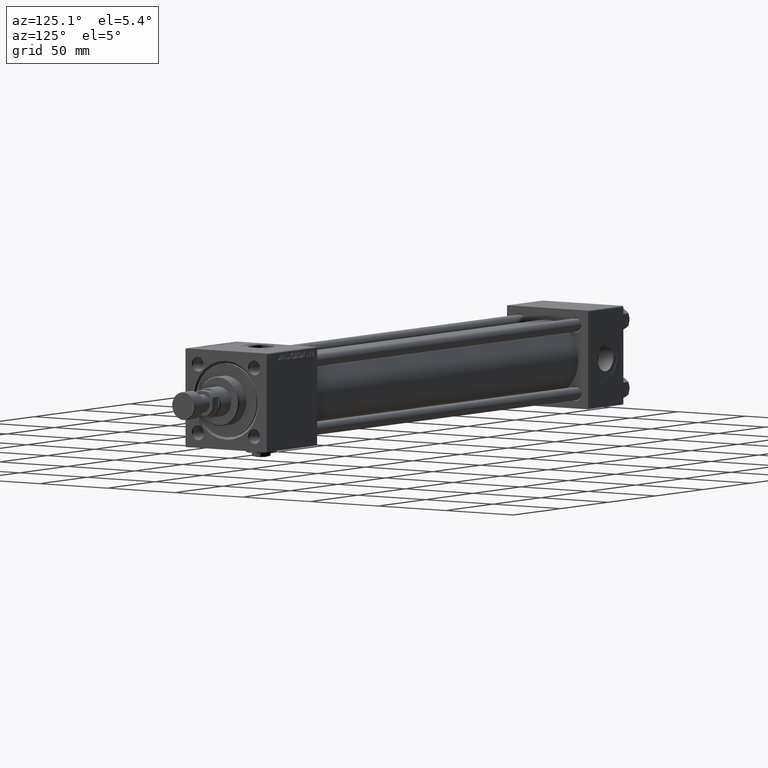
[diagram: clean part render]
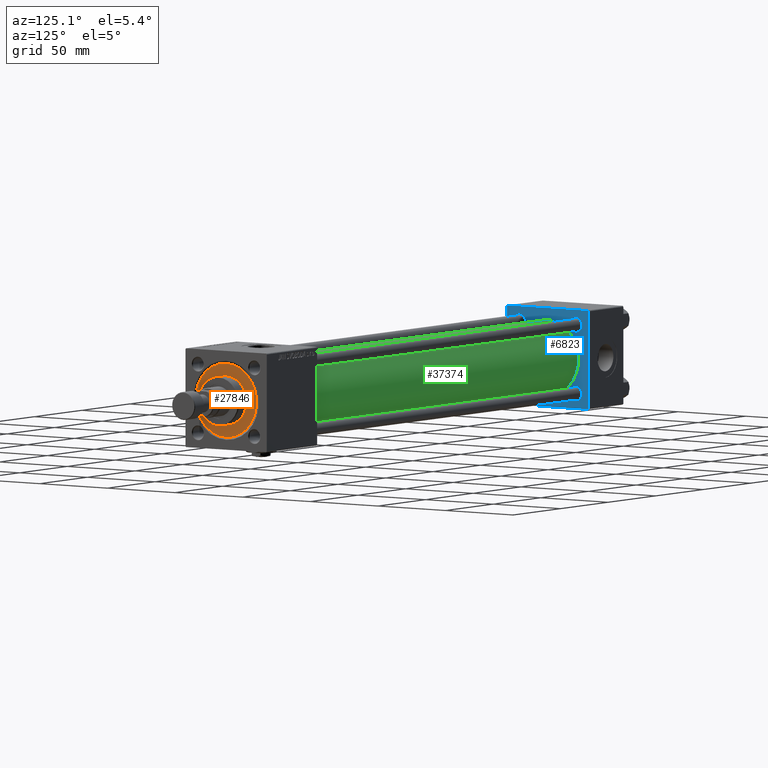
[diagram: same view with three faces highlighted in distinct colors, each labeled with its STEP entity id]
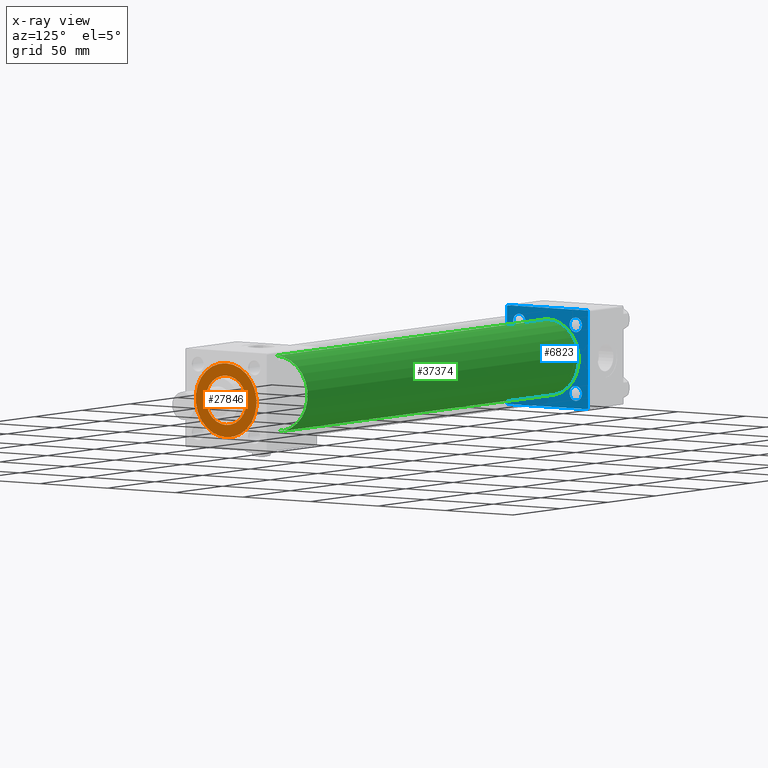
[diagram: x-ray of the same camera — body ghosted, the three highlighted faces saturated]
A machine part, auxiliary view with three faces highlighted in distinct colors.
The next image is the same camera in x-ray (body ghosted, the three faces saturated) — at least one of them is partly hidden behind the body in this view.
Their STEP definitions:

[orange] entity #27846 — the highlighted planar face has unit normal (1, 0, 0).
#1809 = DIRECTION ( 'NONE',  ( 0.000000000000000000, 0.000000000000000000, 1.000000000000000000 ) ) ;
#1943 = VERTEX_POINT ( 'NONE', #26439 ) ;
#3151 = AXIS2_PLACEMENT_3D ( 'NONE', #17734, #21982, #42475 ) ;
#3486 = ORIENTED_EDGE ( 'NONE', *, *, #45606, .F. ) ;
#3556 = CARTESIAN_POINT ( 'NONE',  ( 0.000000000000000000, 0.000000000000000000, 28.69999999999999929 ) ) ;
#5185 = DIRECTION ( 'NONE',  ( 0.000000000000000000, 0.000000000000000000, 1.000000000000000000 ) ) ;
#5450 = DIRECTION ( 'NONE',  ( 1.000000000000000000, 0.000000000000000000, 0.000000000000000000 ) ) ;
#5568 = CIRCLE ( 'NONE', #39565, 22.50000000000000355 ) ;
#6811 = CARTESIAN_POINT ( 'NONE',  ( 22.50000000000000355, 2.755455298081545172E-15, 28.69999999999999929 ) ) ;
#8250 = CIRCLE ( 'NONE', #3151, 15.00000000000000000 ) ;
#12962 = AXIS2_PLACEMENT_3D ( 'NONE', #22027, #1809, #34285 ) ;
#13218 = AXIS2_PLACEMENT_3D ( 'NONE', #18468, #5185, #46426 ) ;
#16214 = ORIENTED_EDGE ( 'NONE', *, *, #37567, .T. ) ;
#16682 = EDGE_LOOP ( 'NONE', ( #30157, #3486 ) ) ;
#17734 = CARTESIAN_POINT ( 'NONE',  ( 0.000000000000000000, 0.000000000000000000, 28.69999999999999929 ) ) ;
#18468 = CARTESIAN_POINT ( 'NONE',  ( 0.000000000000000000, 0.000000000000000000, 28.69999999999999929 ) ) ;
#20922 = CARTESIAN_POINT ( 'NONE',  ( 15.00000000000000000, 1.836970198721029589E-15, 28.69999999999999929 ) ) ;
#21982 = DIRECTION ( 'NONE',  ( 0.000000000000000000, 0.000000000000000000, 1.000000000000000000 ) ) ;
#22027 = CARTESIAN_POINT ( 'NONE',  ( 0.000000000000000000, 0.000000000000000000, 28.69999999999999929 ) ) ;
#22204 = DIRECTION ( 'NONE',  ( 0.000000000000000000, 0.000000000000000000, 1.000000000000000000 ) ) ;
#22466 = CARTESIAN_POINT ( 'NONE',  ( 0.000000000000000000, 0.000000000000000000, 28.69999999999999929 ) ) ;
#22500 = EDGE_LOOP ( 'NONE', ( #45201, #16214 ) ) ;
#23155 = CIRCLE ( 'NONE', #12962, 15.00000000000000000 ) ;
#24409 = CARTESIAN_POINT ( 'NONE',  ( -22.50000000000000355, 0.000000000000000000, 28.69999999999999929 ) ) ;
#26225 = VERTEX_POINT ( 'NONE', #6811 ) ;
#26439 = CARTESIAN_POINT ( 'NONE',  ( -15.00000000000000000, 0.000000000000000000, 28.69999999999999929 ) ) ;
#26870 = EDGE_CURVE ( 'NONE', #1943, #30927, #23155, .T. ) ;
#27846 = ADVANCED_FACE ( 'NONE', ( #40030, #48813 ), #28046, .T. ) ;
#28046 = PLANE ( 'NONE',  #41043 ) ;
#28322 = DIRECTION ( 'NONE',  ( 1.000000000000000000, 0.000000000000000000, -0.000000000000000000 ) ) ;
#30157 = ORIENTED_EDGE ( 'NONE', *, *, #26870, .F. ) ;
#30927 = VERTEX_POINT ( 'NONE', #20922 ) ;
#31897 = CIRCLE ( 'NONE', #13218, 22.50000000000000355 ) ;
#33778 = VERTEX_POINT ( 'NONE', #24409 ) ;
#34285 = DIRECTION ( 'NONE',  ( 1.000000000000000000, 0.000000000000000000, 0.000000000000000000 ) ) ;
#37523 = EDGE_CURVE ( 'NONE', #33778, #26225, #31897, .T. ) ;
#37567 = EDGE_CURVE ( 'NONE', #26225, #33778, #5568, .T. ) ;
#39565 = AXIS2_PLACEMENT_3D ( 'NONE', #22466, #22204, #5450 ) ;
#40030 = FACE_BOUND ( 'NONE', #16682, .T. ) ;
#40571 = DIRECTION ( 'NONE',  ( 0.000000000000000000, 0.000000000000000000, 1.000000000000000000 ) ) ;
#41043 = AXIS2_PLACEMENT_3D ( 'NONE', #3556, #40571, #28322 ) ;
#42475 = DIRECTION ( 'NONE',  ( 1.000000000000000000, 0.000000000000000000, 0.000000000000000000 ) ) ;
#45201 = ORIENTED_EDGE ( 'NONE', *, *, #37523, .T. ) ;
#45606 = EDGE_CURVE ( 'NONE', #30927, #1943, #8250, .T. ) ;
#46426 = DIRECTION ( 'NONE',  ( 1.000000000000000000, 0.000000000000000000, 0.000000000000000000 ) ) ;
#48813 = FACE_OUTER_BOUND ( 'NONE', #22500, .T. ) ;

[blue] entity #6823 — the highlighted planar face has unit normal (-1, 0, 0).
#392 = FACE_BOUND ( 'NONE', #1855, .T. ) ;
#412 = CARTESIAN_POINT ( 'NONE',  ( 36.99999999999997868, -2.602085213965210642E-15, 23.00000000000000000 ) ) ;
#915 = FACE_BOUND ( 'NONE', #50396, .T. ) ;
#1161 = EDGE_CURVE ( 'NONE', #30165, #43500, #48152, .T. ) ;
#1693 = AXIS2_PLACEMENT_3D ( 'NONE', #37477, #16966, #32945 ) ;
#1855 = EDGE_LOOP ( 'NONE', ( #41359, #42658 ) ) ;
#2640 = AXIS2_PLACEMENT_3D ( 'NONE', #50488, #29761, #46245 ) ;
#2744 = AXIS2_PLACEMENT_3D ( 'NONE', #15868, #43803, #24375 ) ;
#2845 = CARTESIAN_POINT ( 'NONE',  ( 37.00000000000000000, -20.84999999999999076, -20.85000000000000497 ) ) ;
#2963 = ORIENTED_EDGE ( 'NONE', *, *, #21821, .T. ) ;
#3118 = CARTESIAN_POINT ( 'NONE',  ( 36.99999999999997868, 2.146024240737016609E-16, -23.00000000000000000 ) ) ;
#3223 = CIRCLE ( 'NONE', #16860, 4.500000000000003553 ) ;
#3911 = CIRCLE ( 'NONE', #21789, 4.500000000000003553 ) ;
#3918 = DIRECTION ( 'NONE',  ( -1.000000000000000000, 0.000000000000000000, -0.000000000000000000 ) ) ;
#4607 = CARTESIAN_POINT ( 'NONE',  ( 37.00000000000000000, 20.84999999999999787, 16.34999999999999787 ) ) ;
#4676 = EDGE_CURVE ( 'NONE', #33747, #44137, #36661, .T. ) ;
#4910 = DIRECTION ( 'NONE',  ( -1.000000000000000000, 0.000000000000000000, -0.000000000000000000 ) ) ;
#5152 = FACE_BOUND ( 'NONE', #25281, .T. ) ;
#5382 = CARTESIAN_POINT ( 'NONE',  ( 37.00000000000000000, -20.84999999999999076, 25.35000000000000853 ) ) ;
#5541 = EDGE_CURVE ( 'NONE', #49054, #50298, #39177, .T. ) ;
#5669 = PLANE ( 'NONE',  #49483 ) ;
#6424 = CARTESIAN_POINT ( 'NONE',  ( 37.00000000000000000, 29.99999999999999289, -29.50000000000000000 ) ) ;
#6816 = VECTOR ( 'NONE', #40947, 1000.000000000000000 ) ;
#6823 = ADVANCED_FACE ( 'NONE', ( #392, #5152, #45363, #37385, #915, #17146 ), #5669, .F. ) ;
#6954 = CARTESIAN_POINT ( 'NONE',  ( 37.00000000000000000, 20.84999999999999787, 20.85000000000000142 ) ) ;
#6990 = CIRCLE ( 'NONE', #20620, 23.00000000000000000 ) ;
#8648 = EDGE_CURVE ( 'NONE', #44137, #33747, #6990, .T. ) ;
#8704 = LINE ( 'NONE', #20688, #10458 ) ;
#8920 = CARTESIAN_POINT ( 'NONE',  ( 37.00000000000000000, 29.49999999999999289, 30.00000000000000000 ) ) ;
#9094 = VERTEX_POINT ( 'NONE', #34830 ) ;
#9192 = EDGE_CURVE ( 'NONE', #39384, #42609, #8704, .T. ) ;
#9219 = ORIENTED_EDGE ( 'NONE', *, *, #8648, .F. ) ;
#9455 = VERTEX_POINT ( 'NONE', #5382 ) ;
#9489 = DIRECTION ( 'NONE',  ( 1.000000000000000000, -0.000000000000000000, 0.000000000000000000 ) ) ;
#9825 = DIRECTION ( 'NONE',  ( 0.000000000000000000, 0.000000000000000000, 1.000000000000000000 ) ) ;
#10174 = DIRECTION ( 'NONE',  ( -0.000000000000000000, 0.000000000000000000, 1.000000000000000000 ) ) ;
#10347 = CARTESIAN_POINT ( 'NONE',  ( 37.00000000000000000, -20.84999999999999076, 20.85000000000000497 ) ) ;
#10458 = VECTOR ( 'NONE', #28938, 1000.000000000000000 ) ;
#11087 = DIRECTION ( 'NONE',  ( -1.000000000000000000, 0.000000000000000000, -0.000000000000000000 ) ) ;
#11178 = EDGE_LOOP ( 'NONE', ( #52000, #38421 ) ) ;
#11474 = VECTOR ( 'NONE', #51642, 999.9999999999998863 ) ;
#11692 = DIRECTION ( 'NONE',  ( 0.000000000000000000, -1.000000000000000000, -1.156482317317871725E-16 ) ) ;
#13378 = DIRECTION ( 'NONE',  ( -1.000000000000000000, 0.000000000000000000, -0.000000000000000000 ) ) ;
#13446 = CARTESIAN_POINT ( 'NONE',  ( 37.00000000000000000, 29.49999999999997868, -30.00000000000000000 ) ) ;
#14962 = ORIENTED_EDGE ( 'NONE', *, *, #21989, .T. ) ;
#15458 = LINE ( 'NONE', #6424, #11474 ) ;
#15745 = DIRECTION ( 'NONE',  ( 0.000000000000000000, 0.000000000000000000, 1.000000000000000000 ) ) ;
#15868 = CARTESIAN_POINT ( 'NONE',  ( 37.00000000000000000, -20.84999999999999076, 20.85000000000000497 ) ) ;
#16670 = ORIENTED_EDGE ( 'NONE', *, *, #5541, .T. ) ;
#16707 = ORIENTED_EDGE ( 'NONE', *, *, #9192, .F. ) ;
#16860 = AXIS2_PLACEMENT_3D ( 'NONE', #51313, #3918, #28946 ) ;
#16868 = CARTESIAN_POINT ( 'NONE',  ( 37.00000000000000000, 29.99999999999999289, 29.50000000000000000 ) ) ;
#16966 = DIRECTION ( 'NONE',  ( -1.000000000000000000, 0.000000000000000000, -0.000000000000000000 ) ) ;
#17146 = FACE_OUTER_BOUND ( 'NONE', #44955, .T. ) ;
#17536 = LINE ( 'NONE', #38284, #28011 ) ;
#17782 = AXIS2_PLACEMENT_3D ( 'NONE', #6954, #43941, #15745 ) ;
#17903 = DIRECTION ( 'NONE',  ( -0.000000000000000000, -0.7071067811865474617, -0.7071067811865474617 ) ) ;
#18355 = DIRECTION ( 'NONE',  ( 0.000000000000000000, 0.000000000000000000, -1.000000000000000000 ) ) ;
#18735 = EDGE_CURVE ( 'NONE', #22096, #37903, #39874, .T. ) ;
#19046 = VERTEX_POINT ( 'NONE', #23910 ) ;
#19963 = EDGE_CURVE ( 'NONE', #42823, #43500, #17536, .T. ) ;
#20542 = VECTOR ( 'NONE', #17903, 1000.000000000000114 ) ;
#20620 = AXIS2_PLACEMENT_3D ( 'NONE', #45952, #9489, #41975 ) ;
#20688 = CARTESIAN_POINT ( 'NONE',  ( 37.00000000000000000, 29.99999999999999289, 30.00000000000000000 ) ) ;
#21534 = ORIENTED_EDGE ( 'NONE', *, *, #19963, .T. ) ;
#21789 = AXIS2_PLACEMENT_3D ( 'NONE', #40854, #4910, #44577 ) ;
#21821 = EDGE_CURVE ( 'NONE', #9455, #41915, #43373, .T. ) ;
#21989 = EDGE_CURVE ( 'NONE', #37479, #49054, #45200, .T. ) ;
#22096 = VERTEX_POINT ( 'NONE', #4607 ) ;
#23122 = VECTOR ( 'NONE', #34629, 1000.000000000000114 ) ;
#23910 = CARTESIAN_POINT ( 'NONE',  ( 37.00000000000000000, 20.84999999999999787, -25.35000000000000497 ) ) ;
#23959 = EDGE_CURVE ( 'NONE', #9094, #49238, #48580, .T. ) ;
#24060 = ORIENTED_EDGE ( 'NONE', *, *, #1161, .F. ) ;
#24375 = DIRECTION ( 'NONE',  ( 0.000000000000000000, 0.000000000000000000, 1.000000000000000000 ) ) ;
#25281 = EDGE_LOOP ( 'NONE', ( #36353, #36407 ) ) ;
#25699 = EDGE_CURVE ( 'NONE', #39384, #37479, #43126, .T. ) ;
#25712 = CIRCLE ( 'NONE', #2744, 4.500000000000003553 ) ;
#25873 = CARTESIAN_POINT ( 'NONE',  ( 37.00000000000000000, -20.84999999999999076, 16.35000000000000142 ) ) ;
#27287 = AXIS2_PLACEMENT_3D ( 'NONE', #2845, #11087, #43050 ) ;
#27829 = ORIENTED_EDGE ( 'NONE', *, *, #4676, .F. ) ;
#28011 = VECTOR ( 'NONE', #41763, 1000.000000000000114 ) ;
#28741 = ORIENTED_EDGE ( 'NONE', *, *, #30822, .T. ) ;
#28938 = DIRECTION ( 'NONE',  ( 0.000000000000000000, 0.000000000000000000, -1.000000000000000000 ) ) ;
#28946 = DIRECTION ( 'NONE',  ( 0.000000000000000000, 0.000000000000000000, 1.000000000000000000 ) ) ;
#29469 = CARTESIAN_POINT ( 'NONE',  ( 37.00000000000000000, -30.00000000000000000, -29.50000000000001776 ) ) ;
#29761 = DIRECTION ( 'NONE',  ( 1.000000000000000000, -0.000000000000000000, 0.000000000000000000 ) ) ;
#29792 = AXIS2_PLACEMENT_3D ( 'NONE', #10347, #31362, #9825 ) ;
#30165 = VERTEX_POINT ( 'NONE', #13446 ) ;
#30822 = EDGE_CURVE ( 'NONE', #41915, #9455, #25712, .T. ) ;
#31362 = DIRECTION ( 'NONE',  ( -1.000000000000000000, 0.000000000000000000, -0.000000000000000000 ) ) ;
#32131 = CARTESIAN_POINT ( 'NONE',  ( 37.00000000000000000, 29.99999999999999289, -29.50000000000000000 ) ) ;
#32945 = DIRECTION ( 'NONE',  ( 0.000000000000000000, 0.000000000000000000, 1.000000000000000000 ) ) ;
#32958 = CARTESIAN_POINT ( 'NONE',  ( 37.00000000000000000, 29.99999999999999289, 30.00000000000000000 ) ) ;
#33747 = VERTEX_POINT ( 'NONE', #3118 ) ;
#34450 = CIRCLE ( 'NONE', #43772, 4.500000000000003553 ) ;
#34629 = DIRECTION ( 'NONE',  ( 0.000000000000000000, -0.7071067811865474617, 0.7071067811865474617 ) ) ;
#34672 = ORIENTED_EDGE ( 'NONE', *, *, #42353, .T. ) ;
#34830 = CARTESIAN_POINT ( 'NONE',  ( 37.00000000000000000, -20.84999999999999076, -25.35000000000000853 ) ) ;
#34914 = CARTESIAN_POINT ( 'NONE',  ( 37.00000000000000000, 20.84999999999999787, 25.35000000000000497 ) ) ;
#35165 = CARTESIAN_POINT ( 'NONE',  ( 37.00000000000000000, 29.49999999999999289, 30.00000000000000000 ) ) ;
#35467 = VECTOR ( 'NONE', #18355, 1000.000000000000000 ) ;
#36353 = ORIENTED_EDGE ( 'NONE', *, *, #43106, .T. ) ;
#36407 = ORIENTED_EDGE ( 'NONE', *, *, #47593, .T. ) ;
#36461 = CARTESIAN_POINT ( 'NONE',  ( 37.00000000000000000, 29.99999999999999289, -30.00000000000000000 ) ) ;
#36532 = CIRCLE ( 'NONE', #1693, 4.500000000000003553 ) ;
#36661 = CIRCLE ( 'NONE', #2640, 23.00000000000000000 ) ;
#37385 = FACE_BOUND ( 'NONE', #11178, .T. ) ;
#37477 = CARTESIAN_POINT ( 'NONE',  ( 37.00000000000000000, 20.84999999999999787, 20.85000000000000142 ) ) ;
#37479 = VERTEX_POINT ( 'NONE', #8920 ) ;
#37807 = EDGE_CURVE ( 'NONE', #49238, #9094, #34450, .T. ) ;
#37903 = VERTEX_POINT ( 'NONE', #34914 ) ;
#37960 = EDGE_CURVE ( 'NONE', #30165, #42609, #15458, .T. ) ;
#38284 = CARTESIAN_POINT ( 'NONE',  ( 37.00000000000000000, -29.50000000000001066, -30.00000000000000711 ) ) ;
#38421 = ORIENTED_EDGE ( 'NONE', *, *, #51005, .T. ) ;
#38537 = ORIENTED_EDGE ( 'NONE', *, *, #25699, .T. ) ;
#39177 = LINE ( 'NONE', #42388, #20542 ) ;
#39190 = CARTESIAN_POINT ( 'NONE',  ( 37.00000000000000000, 0.000000000000000000, 0.000000000000000000 ) ) ;
#39384 = VERTEX_POINT ( 'NONE', #16868 ) ;
#39413 = VERTEX_POINT ( 'NONE', #45080 ) ;
#39874 = CIRCLE ( 'NONE', #17782, 4.500000000000003553 ) ;
#40854 = CARTESIAN_POINT ( 'NONE',  ( 37.00000000000000000, 20.84999999999999787, -20.85000000000000142 ) ) ;
#40947 = DIRECTION ( 'NONE',  ( 0.000000000000000000, -1.000000000000000000, -1.156482317317871725E-16 ) ) ;
#41121 = CARTESIAN_POINT ( 'NONE',  ( 37.00000000000000000, -29.49999999999998579, 29.99999999999999289 ) ) ;
#41359 = ORIENTED_EDGE ( 'NONE', *, *, #23959, .T. ) ;
#41763 = DIRECTION ( 'NONE',  ( 0.000000000000000000, 0.7071067811865474617, -0.7071067811865474617 ) ) ;
#41915 = VERTEX_POINT ( 'NONE', #25873 ) ;
#41975 = DIRECTION ( 'NONE',  ( 0.000000000000000000, 0.000000000000000000, 1.000000000000000000 ) ) ;
#42353 = EDGE_CURVE ( 'NONE', #50298, #42823, #42580, .T. ) ;
#42388 = CARTESIAN_POINT ( 'NONE',  ( 37.00000000000000000, -30.00000000000000000, 29.49999999999999289 ) ) ;
#42580 = LINE ( 'NONE', #47089, #35467 ) ;
#42609 = VERTEX_POINT ( 'NONE', #32131 ) ;
#42658 = ORIENTED_EDGE ( 'NONE', *, *, #37807, .T. ) ;
#42823 = VERTEX_POINT ( 'NONE', #29469 ) ;
#43050 = DIRECTION ( 'NONE',  ( 0.000000000000000000, 0.000000000000000000, 1.000000000000000000 ) ) ;
#43106 = EDGE_CURVE ( 'NONE', #19046, #39413, #3911, .T. ) ;
#43126 = LINE ( 'NONE', #35165, #23122 ) ;
#43373 = CIRCLE ( 'NONE', #29792, 4.500000000000003553 ) ;
#43500 = VERTEX_POINT ( 'NONE', #51171 ) ;
#43569 = EDGE_LOOP ( 'NONE', ( #28741, #2963 ) ) ;
#43772 = AXIS2_PLACEMENT_3D ( 'NONE', #49828, #13378, #51903 ) ;
#43803 = DIRECTION ( 'NONE',  ( -1.000000000000000000, 0.000000000000000000, -0.000000000000000000 ) ) ;
#43941 = DIRECTION ( 'NONE',  ( -1.000000000000000000, 0.000000000000000000, -0.000000000000000000 ) ) ;
#44137 = VERTEX_POINT ( 'NONE', #412 ) ;
#44577 = DIRECTION ( 'NONE',  ( 0.000000000000000000, 0.000000000000000000, 1.000000000000000000 ) ) ;
#44955 = EDGE_LOOP ( 'NONE', ( #24060, #50729, #16707, #38537, #14962, #16670, #34672, #21534 ) ) ;
#45036 = CARTESIAN_POINT ( 'NONE',  ( 37.00000000000000000, -20.84999999999999076, -16.35000000000000142 ) ) ;
#45080 = CARTESIAN_POINT ( 'NONE',  ( 37.00000000000000000, 20.84999999999999787, -16.34999999999999787 ) ) ;
#45200 = LINE ( 'NONE', #32958, #6816 ) ;
#45363 = FACE_BOUND ( 'NONE', #43569, .T. ) ;
#45952 = CARTESIAN_POINT ( 'NONE',  ( 36.99999999999997868, -2.602085213965210642E-15, 0.000000000000000000 ) ) ;
#46245 = DIRECTION ( 'NONE',  ( 0.000000000000000000, 0.000000000000000000, 1.000000000000000000 ) ) ;
#47089 = CARTESIAN_POINT ( 'NONE',  ( 37.00000000000000000, -30.00000000000000000, 29.99999999999999289 ) ) ;
#47593 = EDGE_CURVE ( 'NONE', #39413, #19046, #3223, .T. ) ;
#47648 = VECTOR ( 'NONE', #11692, 1000.000000000000000 ) ;
#48152 = LINE ( 'NONE', #36461, #47648 ) ;
#48580 = CIRCLE ( 'NONE', #27287, 4.500000000000003553 ) ;
#49054 = VERTEX_POINT ( 'NONE', #41121 ) ;
#49238 = VERTEX_POINT ( 'NONE', #45036 ) ;
#49483 = AXIS2_PLACEMENT_3D ( 'NONE', #39190, #51156, #10174 ) ;
#49549 = CARTESIAN_POINT ( 'NONE',  ( 37.00000000000000000, -30.00000000000000000, 29.49999999999999289 ) ) ;
#49828 = CARTESIAN_POINT ( 'NONE',  ( 37.00000000000000000, -20.84999999999999076, -20.85000000000000497 ) ) ;
#50298 = VERTEX_POINT ( 'NONE', #49549 ) ;
#50396 = EDGE_LOOP ( 'NONE', ( #9219, #27829 ) ) ;
#50488 = CARTESIAN_POINT ( 'NONE',  ( 36.99999999999997868, -2.602085213965210642E-15, 0.000000000000000000 ) ) ;
#50729 = ORIENTED_EDGE ( 'NONE', *, *, #37960, .T. ) ;
#51005 = EDGE_CURVE ( 'NONE', #37903, #22096, #36532, .T. ) ;
#51156 = DIRECTION ( 'NONE',  ( -1.000000000000000000, 0.000000000000000000, -0.000000000000000000 ) ) ;
#51171 = CARTESIAN_POINT ( 'NONE',  ( 37.00000000000000000, -29.50000000000000000, -30.00000000000000711 ) ) ;
#51313 = CARTESIAN_POINT ( 'NONE',  ( 37.00000000000000000, 20.84999999999999787, -20.85000000000000142 ) ) ;
#51642 = DIRECTION ( 'NONE',  ( -0.000000000000000000, 0.7071067811865574537, 0.7071067811865376918 ) ) ;
#51903 = DIRECTION ( 'NONE',  ( 0.000000000000000000, 0.000000000000000000, 1.000000000000000000 ) ) ;
#52000 = ORIENTED_EDGE ( 'NONE', *, *, #18735, .T. ) ;

[green] entity #37374 — the highlighted cylindrical surface (partial cylindrical patch) has radius 23 mm, axis along (-1, -0, -0).
#412 = CARTESIAN_POINT ( 'NONE',  ( 36.99999999999997868, -2.602085213965210642E-15, 23.00000000000000000 ) ) ;
#609 = VECTOR ( 'NONE', #36157, 1000.000000000000000 ) ;
#2640 = AXIS2_PLACEMENT_3D ( 'NONE', #50488, #29761, #46245 ) ;
#2782 = ORIENTED_EDGE ( 'NONE', *, *, #38882, .F. ) ;
#3118 = CARTESIAN_POINT ( 'NONE',  ( 36.99999999999997868, 2.146024240737016609E-16, -23.00000000000000000 ) ) ;
#4676 = EDGE_CURVE ( 'NONE', #33747, #44137, #36661, .T. ) ;
#6062 = VERTEX_POINT ( 'NONE', #44622 ) ;
#6688 = ORIENTED_EDGE ( 'NONE', *, *, #41413, .T. ) ;
#10794 = FACE_OUTER_BOUND ( 'NONE', #30754, .T. ) ;
#10913 = ORIENTED_EDGE ( 'NONE', *, *, #4676, .T. ) ;
#12723 = VECTOR ( 'NONE', #29319, 1000.000000000000000 ) ;
#15582 = DIRECTION ( 'NONE',  ( 0.000000000000000000, 0.000000000000000000, 1.000000000000000000 ) ) ;
#16918 = CARTESIAN_POINT ( 'NONE',  ( 321.9999999999999432, -2.602085213965210642E-15, 23.00000000000000000 ) ) ;
#19544 = EDGE_CURVE ( 'NONE', #51324, #44137, #33316, .T. ) ;
#19907 = LINE ( 'NONE', #44398, #609 ) ;
#26824 = AXIS2_PLACEMENT_3D ( 'NONE', #34924, #51138, #47402 ) ;
#29319 = DIRECTION ( 'NONE',  ( -1.000000000000000000, -0.000000000000000000, -0.000000000000000000 ) ) ;
#29761 = DIRECTION ( 'NONE',  ( 1.000000000000000000, -0.000000000000000000, 0.000000000000000000 ) ) ;
#30754 = EDGE_LOOP ( 'NONE', ( #2782, #6688, #10913, #38056 ) ) ;
#33316 = LINE ( 'NONE', #49528, #12723 ) ;
#33747 = VERTEX_POINT ( 'NONE', #3118 ) ;
#34924 = CARTESIAN_POINT ( 'NONE',  ( 321.9999999999999432, -2.602085213965210642E-15, 0.000000000000000000 ) ) ;
#36157 = DIRECTION ( 'NONE',  ( -1.000000000000000000, -0.000000000000000000, -0.000000000000000000 ) ) ;
#36661 = CIRCLE ( 'NONE', #2640, 23.00000000000000000 ) ;
#37374 = ADVANCED_FACE ( 'NONE', ( #10794 ), #43786, .T. ) ;
#38056 = ORIENTED_EDGE ( 'NONE', *, *, #19544, .F. ) ;
#38882 = EDGE_CURVE ( 'NONE', #6062, #51324, #48951, .T. ) ;
#41413 = EDGE_CURVE ( 'NONE', #6062, #33747, #19907, .T. ) ;
#43786 = CYLINDRICAL_SURFACE ( 'NONE', #48919, 23.00000000000000000 ) ;
#44137 = VERTEX_POINT ( 'NONE', #412 ) ;
#44398 = CARTESIAN_POINT ( 'NONE',  ( 321.9999999999999432, 2.146024240737016609E-16, -23.00000000000000000 ) ) ;
#44622 = CARTESIAN_POINT ( 'NONE',  ( 321.9999999999999432, 2.146024240737016609E-16, -23.00000000000000000 ) ) ;
#46245 = DIRECTION ( 'NONE',  ( 0.000000000000000000, 0.000000000000000000, 1.000000000000000000 ) ) ;
#47402 = DIRECTION ( 'NONE',  ( 0.000000000000000000, 0.000000000000000000, -1.000000000000000000 ) ) ;
#48299 = DIRECTION ( 'NONE',  ( -1.000000000000000000, -0.000000000000000000, -0.000000000000000000 ) ) ;
#48919 = AXIS2_PLACEMENT_3D ( 'NONE', #52030, #48299, #15582 ) ;
#48951 = CIRCLE ( 'NONE', #26824, 23.00000000000000000 ) ;
#49528 = CARTESIAN_POINT ( 'NONE',  ( 321.9999999999999432, -2.602085213965210642E-15, 23.00000000000000000 ) ) ;
#50488 = CARTESIAN_POINT ( 'NONE',  ( 36.99999999999997868, -2.602085213965210642E-15, 0.000000000000000000 ) ) ;
#51138 = DIRECTION ( 'NONE',  ( 1.000000000000000000, 0.000000000000000000, 0.000000000000000000 ) ) ;
#51324 = VERTEX_POINT ( 'NONE', #16918 ) ;
#52030 = CARTESIAN_POINT ( 'NONE',  ( 321.9999999999999432, -2.602085213965210642E-15, 0.000000000000000000 ) ) ;